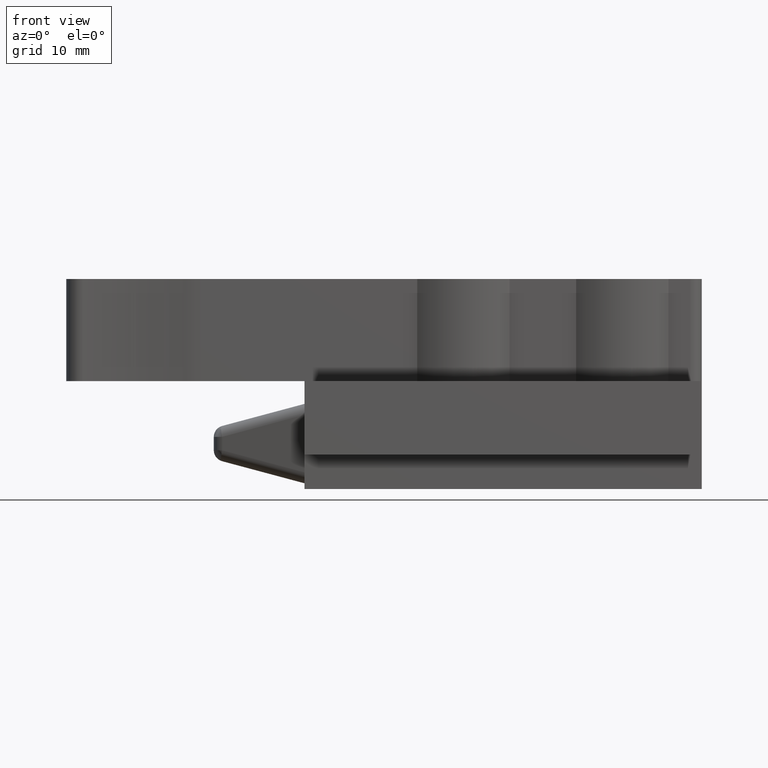
[diagram: clean part render]
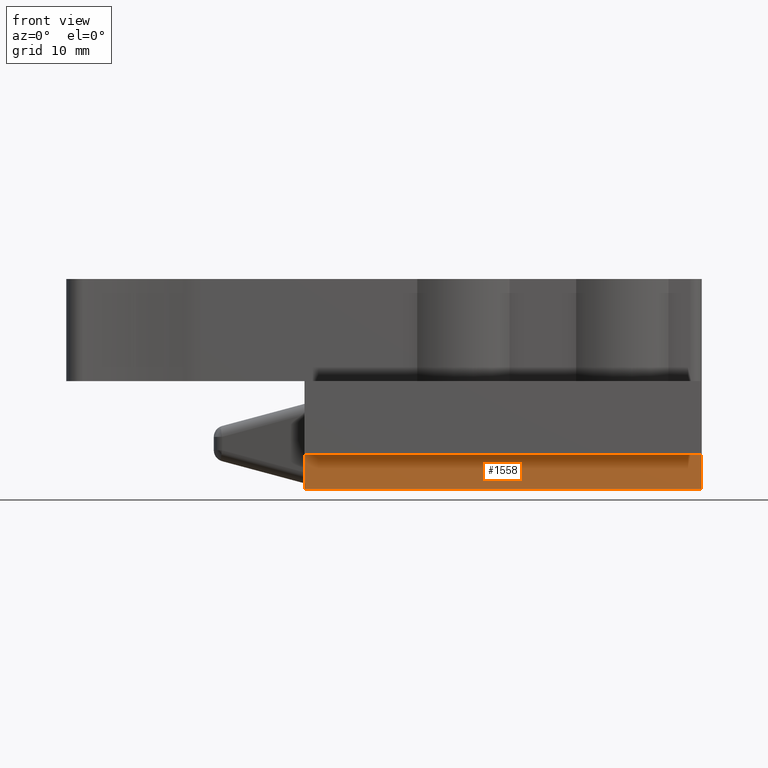
[diagram: same view with one face highlighted and labeled with its STEP entity id]
A machine part, front view. The second image highlights one B-rep face of the part: STEP entity #1558.
In plain terms, the highlighted planar face has unit normal (0, 1, 0).
Its self-contained STEP definition (entity closure, byte-faithful):
#57=CARTESIAN_POINT('',(-35.0,-7.250000000000005,0.0));
#58=VERTEX_POINT('',#57);
#65=CARTESIAN_POINT('',(-35.0,-7.250000000000005,3.0));
#66=VERTEX_POINT('',#65);
#67=CARTESIAN_POINT('',(-35.0,-7.250000000000005,0.0));
#68=DIRECTION('',(0.0,0.0,1.0));
#69=VECTOR('',#68,3.0);
#70=LINE('',#67,#69);
#71=EDGE_CURVE('',#58,#66,#70,.T.);
#1351=CARTESIAN_POINT('',(0.0,-7.250000000000005,3.0));
#1352=VERTEX_POINT('',#1351);
#1359=CARTESIAN_POINT('',(0.0,-7.250000000000005,0.0));
#1360=VERTEX_POINT('',#1359);
#1361=CARTESIAN_POINT('',(0.0,-7.250000000000005,0.0));
#1362=DIRECTION('',(0.0,0.0,1.0));
#1363=VECTOR('',#1362,3.0);
#1364=LINE('',#1361,#1363);
#1365=EDGE_CURVE('',#1360,#1352,#1364,.T.);
#1450=CARTESIAN_POINT('',(-35.0,-7.250000000000005,3.0));
#1451=DIRECTION('',(1.0,0.0,0.0));
#1452=VECTOR('',#1451,35.0);
#1453=LINE('',#1450,#1452);
#1454=EDGE_CURVE('',#66,#1352,#1453,.T.);
#1542=CARTESIAN_POINT('',(-36.750000000000000,-7.250000000000005,-0.149999999999999));
#1543=DIRECTION('',(0.0,1.0,0.0));
#1544=DIRECTION('',(0.0,0.0,1.0));
#1545=AXIS2_PLACEMENT_3D('',#1542,#1543,#1544);
#1546=PLANE('',#1545);
#1547=CARTESIAN_POINT('',(-35.0,-7.250000000000005,0.0));
#1548=DIRECTION('',(1.0,0.0,0.0));
#1549=VECTOR('',#1548,35.0);
#1550=LINE('',#1547,#1549);
#1551=EDGE_CURVE('',#58,#1360,#1550,.T.);
#1552=ORIENTED_EDGE('',*,*,#1551,.T.);
#1553=ORIENTED_EDGE('',*,*,#1365,.T.);
#1554=ORIENTED_EDGE('',*,*,#1454,.F.);
#1555=ORIENTED_EDGE('',*,*,#71,.F.);
#1556=EDGE_LOOP('',(#1552,#1553,#1554,#1555));
#1557=FACE_OUTER_BOUND('',#1556,.T.);
#1558=ADVANCED_FACE('',(#1557),#1546,.F.);